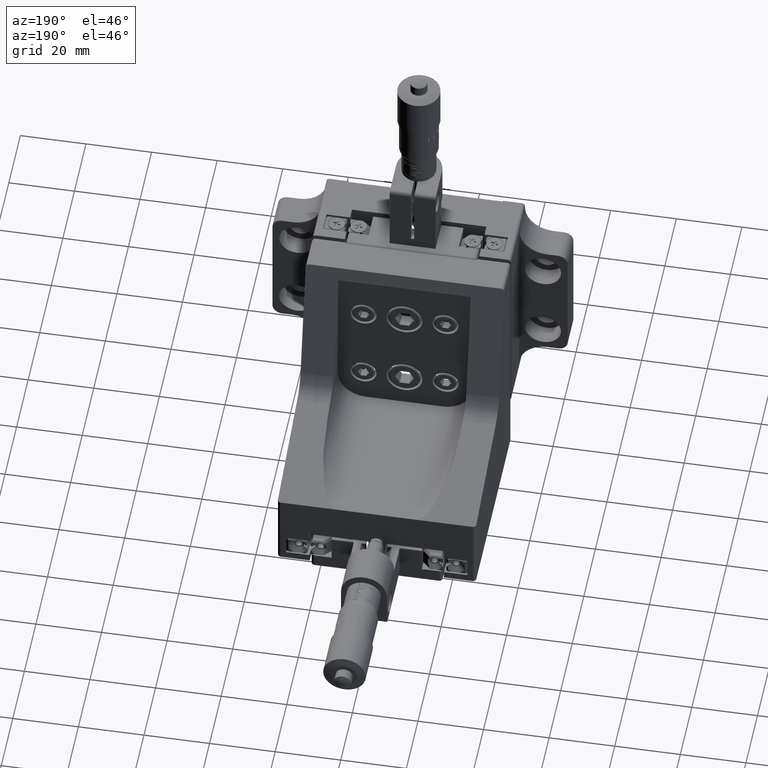
[diagram: clean part render]
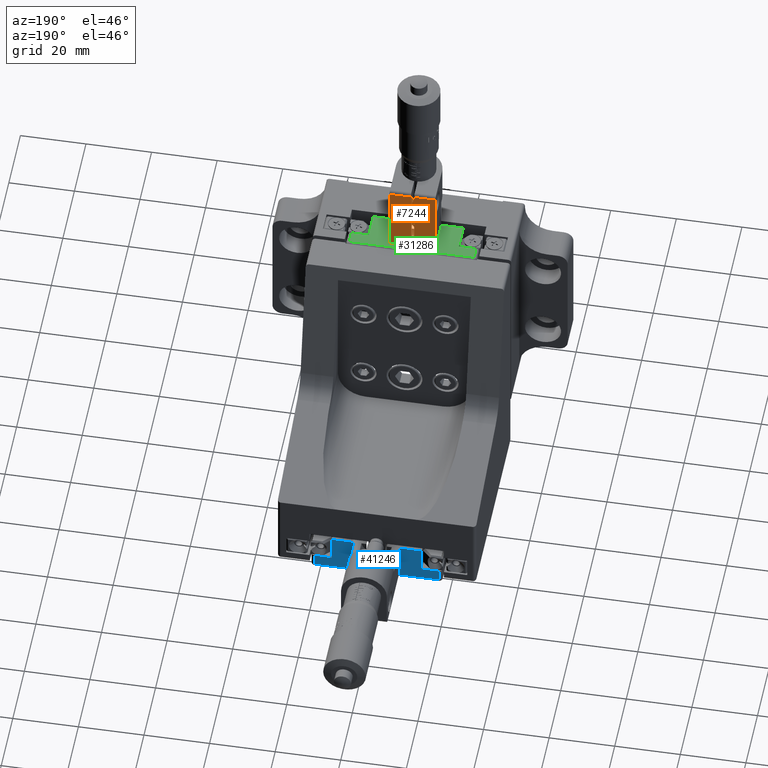
[diagram: same view with three faces highlighted in distinct colors, each labeled with its STEP entity id]
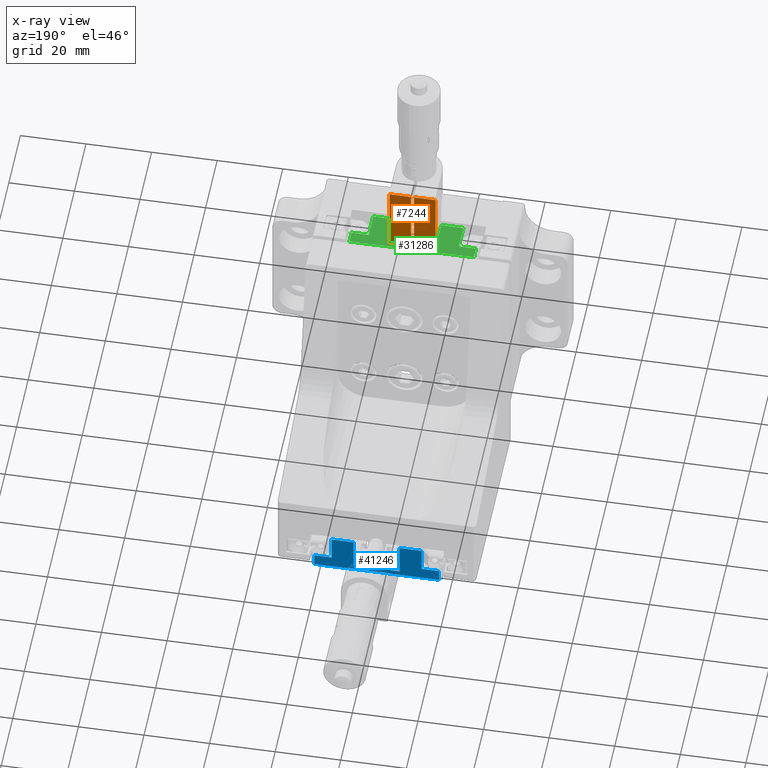
[diagram: x-ray of the same camera — body ghosted, the three highlighted faces saturated]
A machine part, auxiliary view with three faces highlighted in distinct colors.
The next image is the same camera in x-ray (body ghosted, the three faces saturated) — at least one of them is partly hidden behind the body in this view.
Their STEP definitions:

[orange] entity #7244 — the highlighted planar face has unit normal (0, -1, 0).
#9 = VECTOR ( 'NONE', #33601, 1000.000000000000000 ) ;
#1261 = CARTESIAN_POINT ( 'NONE',  ( 1.790640787755551244, 2.884793362488275559, 37.64946462426468798 ) ) ;
#2170 = VECTOR ( 'NONE', #41899, 1000.000000000000000 ) ;
#3417 = ORIENTED_EDGE ( 'NONE', *, *, #36278, .F. ) ;
#3639 = ORIENTED_EDGE ( 'NONE', *, *, #8110, .T. ) ;
#4121 = VERTEX_POINT ( 'NONE', #12371 ) ;
#4552 = VECTOR ( 'NONE', #6290, 1000.000000000000000 ) ;
#5416 = AXIS2_PLACEMENT_3D ( 'NONE', #29250, #7527, #32994 ) ;
#6083 = ORIENTED_EDGE ( 'NONE', *, *, #23496, .F. ) ;
#6290 = DIRECTION ( 'NONE',  ( 1.110223024625159745E-16, -4.929908979680965381E-16, -1.000000000000000000 ) ) ;
#6895 = CARTESIAN_POINT ( 'NONE',  ( 2.790640787755550800, 2.884793362488276447, 37.64946462426468798 ) ) ;
#7244 = ADVANCED_FACE ( 'NONE', ( #11716 ), #18249, .F. ) ;
#7527 = DIRECTION ( 'NONE',  ( 7.530787885402815483E-16, -1.000000000000000000, 4.929908979680966367E-16 ) ) ;
#7983 = EDGE_CURVE ( 'NONE', #33612, #36936, #29813, .T. ) ;
#8110 = EDGE_CURVE ( 'NONE', #4121, #25209, #13220, .T. ) ;
#10421 = EDGE_CURVE ( 'NONE', #35873, #33612, #17407, .T. ) ;
#11716 = FACE_OUTER_BOUND ( 'NONE', #12981, .T. ) ;
#12371 = CARTESIAN_POINT ( 'NONE',  ( 2.790640787755551244, 2.884793362488277335, 37.64946462426468798 ) ) ;
#12713 = CARTESIAN_POINT ( 'NONE',  ( 2.790640787755550800, 2.884793362488276447, 37.64946462426468798 ) ) ;
#12981 = EDGE_LOOP ( 'NONE', ( #3639, #29410, #45769, #37485, #40057, #43678, #6083, #3417 ) ) ;
#13220 = LINE ( 'NONE', #6895, #14345 ) ;
#14345 = VECTOR ( 'NONE', #27928, 1000.000000000000000 ) ;
#14503 = CARTESIAN_POINT ( 'NONE',  ( 2.790640787755548580, 2.884793362488285773, 55.64946462426468088 ) ) ;
#16476 = DIRECTION ( 'NONE',  ( 1.000000000000000000, 7.530787885402817455E-16, 1.110223024625156047E-16 ) ) ;
#17207 = CARTESIAN_POINT ( 'NONE',  ( 9.290640787755553021, 2.884793362488280888, 34.64946462426468798 ) ) ;
#17407 = LINE ( 'NONE', #17636, #18296 ) ;
#17636 = CARTESIAN_POINT ( 'NONE',  ( 9.290640787755551244, 2.884793362488291546, 56.64946462426469509 ) ) ;
#18249 = PLANE ( 'NONE',  #5416 ) ;
#18296 = VECTOR ( 'NONE', #35430, 1000.000000000000000 ) ;
#18359 = VECTOR ( 'NONE', #16476, 1000.000000000000000 ) ;
#19468 = DIRECTION ( 'NONE',  ( -1.000000000000000000, -7.530787885402817455E-16, -1.110223024625156047E-16 ) ) ;
#19746 = CARTESIAN_POINT ( 'NONE',  ( 9.290640787755553021, 2.884793362488280888, 34.64946462426468798 ) ) ;
#19949 = CARTESIAN_POINT ( 'NONE',  ( -4.709359212244449644, 2.884793362488280888, 55.64946462426468088 ) ) ;
#21926 = VERTEX_POINT ( 'NONE', #1261 ) ;
#22041 = VERTEX_POINT ( 'NONE', #19949 ) ;
#23410 = CARTESIAN_POINT ( 'NONE',  ( 1.790640787755551244, 2.884793362488275559, 37.64946462426468798 ) ) ;
#23496 = EDGE_CURVE ( 'NONE', #21926, #41513, #23645, .T. ) ;
#23645 = LINE ( 'NONE', #23410, #2170 ) ;
#25209 = VERTEX_POINT ( 'NONE', #14503 ) ;
#27928 = DIRECTION ( 'NONE',  ( -1.110223024625159745E-16, 4.929908979680965381E-16, 1.000000000000000000 ) ) ;
#29250 = CARTESIAN_POINT ( 'NONE',  ( 9.290640787755551244, 2.884793362488291546, 56.64946462426469509 ) ) ;
#29410 = ORIENTED_EDGE ( 'NONE', *, *, #40582, .T. ) ;
#29813 = LINE ( 'NONE', #19746, #40444 ) ;
#29873 = CARTESIAN_POINT ( 'NONE',  ( 1.790640787755549246, 2.884793362488284885, 55.64946462426468088 ) ) ;
#30124 = EDGE_CURVE ( 'NONE', #22041, #41513, #43889, .T. ) ;
#30256 = LINE ( 'NONE', #37538, #18359 ) ;
#30997 = EDGE_CURVE ( 'NONE', #22041, #36936, #31074, .T. ) ;
#31074 = LINE ( 'NONE', #34825, #4552 ) ;
#31516 = CARTESIAN_POINT ( 'NONE',  ( 9.290640787755551244, 2.884793362488291102, 55.64946462426468798 ) ) ;
#32994 = DIRECTION ( 'NONE',  ( -1.110223024625159745E-16, 4.929908979680965381E-16, 1.000000000000000000 ) ) ;
#33126 = CARTESIAN_POINT ( 'NONE',  ( -4.709359212244447868, 2.884793362488270230, 34.64946462426468798 ) ) ;
#33291 = LINE ( 'NONE', #12713, #37652 ) ;
#33601 = DIRECTION ( 'NONE',  ( 1.000000000000000000, 7.530787885402817455E-16, 1.110223024625156047E-16 ) ) ;
#33612 = VERTEX_POINT ( 'NONE', #17207 ) ;
#34034 = DIRECTION ( 'NONE',  ( -1.000000000000000000, -7.530787885402817455E-16, -1.110223024625156047E-16 ) ) ;
#34825 = CARTESIAN_POINT ( 'NONE',  ( -4.709359212244449644, 2.884793362488281332, 56.64946462426468798 ) ) ;
#35430 = DIRECTION ( 'NONE',  ( 1.110223024625159745E-16, -4.929908979680965381E-16, -1.000000000000000000 ) ) ;
#35873 = VERTEX_POINT ( 'NONE', #31516 ) ;
#36278 = EDGE_CURVE ( 'NONE', #4121, #21926, #33291, .T. ) ;
#36936 = VERTEX_POINT ( 'NONE', #33126 ) ;
#37485 = ORIENTED_EDGE ( 'NONE', *, *, #7983, .T. ) ;
#37538 = CARTESIAN_POINT ( 'NONE',  ( 9.290640787755551244, 2.884793362488291102, 55.64946462426468798 ) ) ;
#37652 = VECTOR ( 'NONE', #19468, 1000.000000000000000 ) ;
#40057 = ORIENTED_EDGE ( 'NONE', *, *, #30997, .F. ) ;
#40444 = VECTOR ( 'NONE', #34034, 1000.000000000000000 ) ;
#40582 = EDGE_CURVE ( 'NONE', #25209, #35873, #30256, .T. ) ;
#40845 = CARTESIAN_POINT ( 'NONE',  ( 1.790640787755549246, 2.884793362488285773, 55.64946462426468088 ) ) ;
#41513 = VERTEX_POINT ( 'NONE', #29873 ) ;
#41899 = DIRECTION ( 'NONE',  ( -1.110223024625159745E-16, 4.929908979680965381E-16, 1.000000000000000000 ) ) ;
#43678 = ORIENTED_EDGE ( 'NONE', *, *, #30124, .T. ) ;
#43889 = LINE ( 'NONE', #40845, #9 ) ;
#45769 = ORIENTED_EDGE ( 'NONE', *, *, #10421, .T. ) ;

[blue] entity #41246 — the highlighted planar face has unit normal (-0, 1, 0).
#508 = EDGE_CURVE ( 'NONE', #28040, #42423, #38525, .T. ) ;
#544 = LINE ( 'NONE', #7815, #45504 ) ;
#662 = EDGE_CURVE ( 'NONE', #26071, #11288, #19968, .T. ) ;
#2496 = EDGE_LOOP ( 'NONE', ( #16521, #26400, #6136, #5016, #27287, #2645, #17563, #36435, #36657, #35161, #3673, #16316 ) ) ;
#2645 = ORIENTED_EDGE ( 'NONE', *, *, #22128, .T. ) ;
#2690 = CARTESIAN_POINT ( 'NONE',  ( -16.70935921218020681, 64.88479336248714446, -43.05053537570060485 ) ) ;
#3673 = ORIENTED_EDGE ( 'NONE', *, *, #10578, .T. ) ;
#4652 = VECTOR ( 'NONE', #40697, 1000.000000000000000 ) ;
#5016 = ORIENTED_EDGE ( 'NONE', *, *, #508, .T. ) ;
#5385 = PLANE ( 'NONE',  #11705 ) ;
#6136 = ORIENTED_EDGE ( 'NONE', *, *, #25262, .T. ) ;
#6633 = LINE ( 'NONE', #35166, #41647 ) ;
#7388 = EDGE_CURVE ( 'NONE', #11288, #20204, #19631, .T. ) ;
#7815 = CARTESIAN_POINT ( 'NONE',  ( -11.45935921218020326, 64.88479336248714446, -39.35053537570061621 ) ) ;
#8154 = CARTESIAN_POINT ( 'NONE',  ( -16.70935921218022457, 64.88479336248714446, -39.35053537570060911 ) ) ;
#9405 = VERTEX_POINT ( 'NONE', #10395 ) ;
#9559 = CARTESIAN_POINT ( 'NONE',  ( 9.290640787819798518, 64.88479336248714446, -30.05053537570063327 ) ) ;
#10395 = CARTESIAN_POINT ( 'NONE',  ( 9.290640787819796742, 64.88479336248714446, -41.55053537570063327 ) ) ;
#10437 = CARTESIAN_POINT ( 'NONE',  ( 21.29064078781985359, 64.88479336248714446, -43.05053537570064037 ) ) ;
#10578 = EDGE_CURVE ( 'NONE', #14126, #26071, #15056, .T. ) ;
#11233 = CARTESIAN_POINT ( 'NONE',  ( 16.04064078781979319, 64.88479336248714446, -39.35053537570062332 ) ) ;
#11288 = VERTEX_POINT ( 'NONE', #11233 ) ;
#11625 = VECTOR ( 'NONE', #31440, 1000.000000000000000 ) ;
#11705 = AXIS2_PLACEMENT_3D ( 'NONE', #19632, #33918, #44664 ) ;
#12041 = LINE ( 'NONE', #19026, #37170 ) ;
#12174 = CARTESIAN_POINT ( 'NONE',  ( 22.29064078781980740, 64.88479336248714446, -39.35053537570062332 ) ) ;
#12808 = EDGE_CURVE ( 'NONE', #20204, #27978, #20254, .T. ) ;
#13445 = CARTESIAN_POINT ( 'NONE',  ( 16.04064078781979674, 64.88479336248714446, -31.55053537570067590 ) ) ;
#14126 = VERTEX_POINT ( 'NONE', #42205 ) ;
#14267 = EDGE_CURVE ( 'NONE', #42423, #25760, #544, .T. ) ;
#14293 = LINE ( 'NONE', #42350, #36030 ) ;
#14438 = VERTEX_POINT ( 'NONE', #27405 ) ;
#15056 = LINE ( 'NONE', #32604, #29548 ) ;
#15412 = LINE ( 'NONE', #33880, #19420 ) ;
#16316 = ORIENTED_EDGE ( 'NONE', *, *, #662, .T. ) ;
#16521 = ORIENTED_EDGE ( 'NONE', *, *, #7388, .T. ) ;
#17563 = ORIENTED_EDGE ( 'NONE', *, *, #34270, .T. ) ;
#19026 = CARTESIAN_POINT ( 'NONE',  ( 9.290640787819796742, 64.88479336248714446, -41.55053537570063327 ) ) ;
#19417 = EDGE_CURVE ( 'NONE', #14438, #21517, #34755, .T. ) ;
#19420 = VECTOR ( 'NONE', #26613, 1000.000000000000000 ) ;
#19631 = LINE ( 'NONE', #12174, #4652 ) ;
#19632 = CARTESIAN_POINT ( 'NONE',  ( 21.29064078781985359, 64.88479336248714446, -43.05053537570064037 ) ) ;
#19968 = LINE ( 'NONE', #13445, #11625 ) ;
#20204 = VERTEX_POINT ( 'NONE', #29617 ) ;
#20254 = LINE ( 'NONE', #45751, #21526 ) ;
#20263 = CARTESIAN_POINT ( 'NONE',  ( -16.70935921218019971, 64.88479336248714446, -43.05053537570080380 ) ) ;
#21041 = CARTESIAN_POINT ( 'NONE',  ( 16.04064078781979674, 64.88479336248714446, -31.55053537570067590 ) ) ;
#21517 = VERTEX_POINT ( 'NONE', #31317 ) ;
#21526 = VECTOR ( 'NONE', #23528, 1000.000000000000000 ) ;
#21964 = EDGE_CURVE ( 'NONE', #9405, #14438, #12041, .T. ) ;
#22128 = EDGE_CURVE ( 'NONE', #25760, #33094, #6633, .T. ) ;
#23528 = DIRECTION ( 'NONE',  ( 1.200259861470175307E-14, 7.788471400556360391E-17, -1.000000000000000000 ) ) ;
#23804 = DIRECTION ( 'NONE',  ( -1.873501354054950676E-16, 7.788471400556191526E-17, -1.000000000000000000 ) ) ;
#24386 = DIRECTION ( 'NONE',  ( 1.873501354054950676E-16, -7.788471400556191526E-17, 1.000000000000000000 ) ) ;
#24439 = CARTESIAN_POINT ( 'NONE',  ( -4.709359212180202370, 64.88479336248714446, -30.05053537570062971 ) ) ;
#25262 = EDGE_CURVE ( 'NONE', #27978, #28040, #15412, .T. ) ;
#25760 = VERTEX_POINT ( 'NONE', #38903 ) ;
#26071 = VERTEX_POINT ( 'NONE', #21041 ) ;
#26282 = DIRECTION ( 'NONE',  ( -1.000000000000000000, -1.387778780781446415E-16, 1.873501354054950676E-16 ) ) ;
#26400 = ORIENTED_EDGE ( 'NONE', *, *, #12808, .T. ) ;
#26473 = DIRECTION ( 'NONE',  ( 1.000000000000000000, 1.387778780781446662E-16, -4.649058915617834138E-16 ) ) ;
#26613 = DIRECTION ( 'NONE',  ( -1.000000000000000000, -1.387778780781446908E-16, 9.352898572582309791E-16 ) ) ;
#26648 = FACE_OUTER_BOUND ( 'NONE', #2496, .T. ) ;
#27287 = ORIENTED_EDGE ( 'NONE', *, *, #14267, .T. ) ;
#27405 = CARTESIAN_POINT ( 'NONE',  ( -4.709359212180204146, 64.88479336248714446, -41.55053537570063327 ) ) ;
#27978 = VERTEX_POINT ( 'NONE', #10437 ) ;
#28040 = VERTEX_POINT ( 'NONE', #2690 ) ;
#29090 = DIRECTION ( 'NONE',  ( 1.000000000000000000, 1.387778780781448141E-16, -2.269018306577663679E-15 ) ) ;
#29288 = VECTOR ( 'NONE', #23804, 1000.000000000000000 ) ;
#29548 = VECTOR ( 'NONE', #29090, 1000.000000000000000 ) ;
#29617 = CARTESIAN_POINT ( 'NONE',  ( 21.29064078781980385, 64.88479336248714446, -39.35053537570062332 ) ) ;
#29905 = CARTESIAN_POINT ( 'NONE',  ( -11.45935921218020326, 64.88479336248714446, -31.55053537570061550 ) ) ;
#31317 = CARTESIAN_POINT ( 'NONE',  ( -4.709359212180204146, 64.88479336248714446, -31.55053537570062616 ) ) ;
#31440 = DIRECTION ( 'NONE',  ( -6.321510266816027023E-16, 7.788471400556185363E-17, -1.000000000000000000 ) ) ;
#32195 = EDGE_CURVE ( 'NONE', #14126, #9405, #41592, .T. ) ;
#32604 = CARTESIAN_POINT ( 'NONE',  ( 16.04064078781979674, 64.88479336248714446, -31.55053537570067590 ) ) ;
#33094 = VERTEX_POINT ( 'NONE', #29905 ) ;
#33880 = CARTESIAN_POINT ( 'NONE',  ( 21.29064078781985359, 64.88479336248714446, -43.05053537570064037 ) ) ;
#33918 = DIRECTION ( 'NONE',  ( -1.387778780781446169E-16, 1.000000000000000000, 7.788471400556193991E-17 ) ) ;
#34086 = DIRECTION ( 'NONE',  ( -4.501091691558859781E-15, -7.788471400556256853E-17, 1.000000000000000000 ) ) ;
#34270 = EDGE_CURVE ( 'NONE', #33094, #21517, #14293, .T. ) ;
#34755 = LINE ( 'NONE', #24439, #42598 ) ;
#35161 = ORIENTED_EDGE ( 'NONE', *, *, #32195, .F. ) ;
#35166 = CARTESIAN_POINT ( 'NONE',  ( -11.45935921218020326, 64.88479336248714446, -31.55053537570061550 ) ) ;
#36030 = VECTOR ( 'NONE', #42815, 1000.000000000000000 ) ;
#36435 = ORIENTED_EDGE ( 'NONE', *, *, #19417, .F. ) ;
#36657 = ORIENTED_EDGE ( 'NONE', *, *, #21964, .F. ) ;
#37170 = VECTOR ( 'NONE', #26282, 1000.000000000000000 ) ;
#38525 = LINE ( 'NONE', #20263, #43729 ) ;
#38903 = CARTESIAN_POINT ( 'NONE',  ( -11.45935921218020326, 64.88479336248714446, -39.35053537570061621 ) ) ;
#39877 = DIRECTION ( 'NONE',  ( 1.873501354054950676E-16, -7.788471400556191526E-17, 1.000000000000000000 ) ) ;
#40697 = DIRECTION ( 'NONE',  ( 1.000000000000000000, 1.387778780781446415E-16, -1.873501354054950676E-16 ) ) ;
#41246 = ADVANCED_FACE ( 'NONE', ( #26648 ), #5385, .T. ) ;
#41592 = LINE ( 'NONE', #9559, #29288 ) ;
#41647 = VECTOR ( 'NONE', #24386, 1000.000000000000000 ) ;
#42205 = CARTESIAN_POINT ( 'NONE',  ( 9.290640787819798518, 64.88479336248714446, -31.55053537570066169 ) ) ;
#42350 = CARTESIAN_POINT ( 'NONE',  ( 16.04064078781979674, 64.88479336248714446, -31.55053537570067590 ) ) ;
#42423 = VERTEX_POINT ( 'NONE', #8154 ) ;
#42598 = VECTOR ( 'NONE', #39877, 1000.000000000000000 ) ;
#42815 = DIRECTION ( 'NONE',  ( 1.000000000000000000, 1.387778780781448141E-16, -2.269018306577663679E-15 ) ) ;
#43729 = VECTOR ( 'NONE', #34086, 1000.000000000000000 ) ;
#44664 = DIRECTION ( 'NONE',  ( -1.000000000000000000, -1.387778780781446415E-16, 1.873501354054950676E-16 ) ) ;
#45504 = VECTOR ( 'NONE', #26473, 1000.000000000000000 ) ;
#45751 = CARTESIAN_POINT ( 'NONE',  ( 21.29064078781985003, 64.88479336248714446, -43.05053537570064037 ) ) ;

[green] entity #31286 — the highlighted planar face has unit normal (-0, 0, 1).
#1411 = VERTEX_POINT ( 'NONE', #23611 ) ;
#1460 = ORIENTED_EDGE ( 'NONE', *, *, #9202, .F. ) ;
#1936 = DIRECTION ( 'NONE',  ( -1.110223024625159745E-16, 4.929908979680965381E-16, 1.000000000000000000 ) ) ;
#2232 = VECTOR ( 'NONE', #19997, 1000.000000000000000 ) ;
#2352 = EDGE_CURVE ( 'NONE', #10510, #12009, #44385, .T. ) ;
#2640 = CARTESIAN_POINT ( 'NONE',  ( -16.70935921224445053, 4.384793362488232482, 34.64946462426468798 ) ) ;
#4123 = CARTESIAN_POINT ( 'NONE',  ( -16.70935921224446474, 0.6847933624882420744, 34.64946462426468798 ) ) ;
#4638 = CARTESIAN_POINT ( 'NONE',  ( -11.45935921224443987, -7.115206637511749754, 34.64946462426469509 ) ) ;
#4909 = ORIENTED_EDGE ( 'NONE', *, *, #20956, .T. ) ;
#4993 = PLANE ( 'NONE',  #40411 ) ;
#5418 = CARTESIAN_POINT ( 'NONE',  ( 16.04064078775556013, -7.115206637511671595, 34.64946462426469509 ) ) ;
#5649 = VECTOR ( 'NONE', #40386, 1000.000000000000000 ) ;
#5725 = CARTESIAN_POINT ( 'NONE',  ( 9.290640787755561902, -8.615206637511720444, 34.64946462426469509 ) ) ;
#6449 = CARTESIAN_POINT ( 'NONE',  ( 21.29064078775560631, 4.384793362488290214, 34.64946462426468798 ) ) ;
#6482 = ORIENTED_EDGE ( 'NONE', *, *, #9668, .T. ) ;
#7281 = EDGE_CURVE ( 'NONE', #14523, #35564, #26192, .T. ) ;
#7912 = ORIENTED_EDGE ( 'NONE', *, *, #19187, .T. ) ;
#7983 = EDGE_CURVE ( 'NONE', #33612, #36936, #29813, .T. ) ;
#8117 = LINE ( 'NONE', #29387, #5649 ) ;
#8350 = VECTOR ( 'NONE', #40969, 1000.000000000000000 ) ;
#8510 = VERTEX_POINT ( 'NONE', #12868 ) ;
#9138 = VERTEX_POINT ( 'NONE', #4123 ) ;
#9202 = EDGE_CURVE ( 'NONE', #21122, #33612, #12286, .T. ) ;
#9244 = DIRECTION ( 'NONE',  ( -7.530787885402815483E-16, 1.000000000000000000, -4.929908979680966367E-16 ) ) ;
#9270 = LINE ( 'NONE', #12546, #2232 ) ;
#9416 = CARTESIAN_POINT ( 'NONE',  ( 16.04064078775554947, 0.6847933624882716064, 34.64946462426469509 ) ) ;
#9668 = EDGE_CURVE ( 'NONE', #29431, #9138, #30681, .T. ) ;
#9896 = EDGE_CURVE ( 'NONE', #8510, #29431, #18037, .T. ) ;
#10510 = VERTEX_POINT ( 'NONE', #43365 ) ;
#11499 = DIRECTION ( 'NONE',  ( -1.000000000000000000, -1.501018510393017756E-15, -1.110223024625152350E-16 ) ) ;
#12009 = VERTEX_POINT ( 'NONE', #33034 ) ;
#12025 = CARTESIAN_POINT ( 'NONE',  ( -4.709359212244442539, -7.115206637511731103, 34.64946462426469509 ) ) ;
#12286 = LINE ( 'NONE', #5725, #35212 ) ;
#12372 = EDGE_CURVE ( 'NONE', #1411, #14523, #26182, .T. ) ;
#12546 = CARTESIAN_POINT ( 'NONE',  ( -11.45935921224444520, 0.6847933624882472925, 34.64946462426468798 ) ) ;
#12625 = CARTESIAN_POINT ( 'NONE',  ( 16.04064078775556013, -7.115206637511671595, 34.64946462426469509 ) ) ;
#12679 = LINE ( 'NONE', #5418, #8350 ) ;
#12868 = CARTESIAN_POINT ( 'NONE',  ( 21.29064078775560986, 4.384793362488290214, 34.64946462426468798 ) ) ;
#12926 = DIRECTION ( 'NONE',  ( -3.935363038424073202E-15, -1.000000000000000000, 4.929908979680961437E-16 ) ) ;
#14523 = VERTEX_POINT ( 'NONE', #9416 ) ;
#14622 = ORIENTED_EDGE ( 'NONE', *, *, #2352, .T. ) ;
#14763 = DIRECTION ( 'NONE',  ( 1.000000000000000000, 7.530787885402817455E-16, 1.110223024625156047E-16 ) ) ;
#16523 = ORIENTED_EDGE ( 'NONE', *, *, #9896, .T. ) ;
#16683 = ORIENTED_EDGE ( 'NONE', *, *, #18501, .F. ) ;
#16872 = CARTESIAN_POINT ( 'NONE',  ( 9.290640787755560126, -7.115206637511692911, 34.64946462426469509 ) ) ;
#17207 = CARTESIAN_POINT ( 'NONE',  ( 9.290640787755553021, 2.884793362488280888, 34.64946462426468798 ) ) ;
#18037 = LINE ( 'NONE', #40246, #36245 ) ;
#18501 = EDGE_CURVE ( 'NONE', #36936, #25584, #42564, .T. ) ;
#19128 = VECTOR ( 'NONE', #12926, 1000.000000000000000 ) ;
#19187 = EDGE_CURVE ( 'NONE', #9138, #10510, #9270, .T. ) ;
#19746 = CARTESIAN_POINT ( 'NONE',  ( 9.290640787755553021, 2.884793362488280888, 34.64946462426468798 ) ) ;
#19997 = DIRECTION ( 'NONE',  ( 1.000000000000000000, 1.030634544696570092E-15, 1.110223024625154692E-16 ) ) ;
#20956 = EDGE_CURVE ( 'NONE', #21122, #1411, #12679, .T. ) ;
#21122 = VERTEX_POINT ( 'NONE', #16872 ) ;
#21835 = ORIENTED_EDGE ( 'NONE', *, *, #7281, .T. ) ;
#22550 = VECTOR ( 'NONE', #37611, 1000.000000000000000 ) ;
#23611 = CARTESIAN_POINT ( 'NONE',  ( 16.04064078775556013, -7.115206637511671595, 34.64946462426469509 ) ) ;
#23679 = FACE_OUTER_BOUND ( 'NONE', #42878, .T. ) ;
#25584 = VERTEX_POINT ( 'NONE', #12025 ) ;
#26182 = LINE ( 'NONE', #12625, #35704 ) ;
#26192 = LINE ( 'NONE', #40467, #42017 ) ;
#26946 = ORIENTED_EDGE ( 'NONE', *, *, #37112, .T. ) ;
#28526 = CARTESIAN_POINT ( 'NONE',  ( -4.709359212244438986, -8.615206637511731103, 34.64946462426469509 ) ) ;
#29387 = CARTESIAN_POINT ( 'NONE',  ( 16.04064078775556013, -7.115206637511671595, 34.64946462426469509 ) ) ;
#29422 = VECTOR ( 'NONE', #31926, 1000.000000000000000 ) ;
#29431 = VERTEX_POINT ( 'NONE', #2640 ) ;
#29799 = ORIENTED_EDGE ( 'NONE', *, *, #40039, .T. ) ;
#29813 = LINE ( 'NONE', #19746, #40444 ) ;
#30681 = LINE ( 'NONE', #44955, #19128 ) ;
#31286 = ADVANCED_FACE ( 'NONE', ( #23679 ), #4993, .T. ) ;
#31926 = DIRECTION ( 'NONE',  ( 1.143686996156696649E-14, 1.000000000000000000, -4.929908979680952562E-16 ) ) ;
#32493 = ORIENTED_EDGE ( 'NONE', *, *, #12372, .T. ) ;
#33034 = CARTESIAN_POINT ( 'NONE',  ( -11.45935921224443987, -7.115206637511749754, 34.64946462426469509 ) ) ;
#33126 = CARTESIAN_POINT ( 'NONE',  ( -4.709359212244447868, 2.884793362488270230, 34.64946462426468798 ) ) ;
#33612 = VERTEX_POINT ( 'NONE', #17207 ) ;
#33675 = DIRECTION ( 'NONE',  ( -1.197879679816389183E-15, 1.000000000000000000, -4.929908979680967353E-16 ) ) ;
#33990 = CARTESIAN_POINT ( 'NONE',  ( 21.29064078775560986, 4.384793362488290214, 34.64946462426468798 ) ) ;
#34034 = DIRECTION ( 'NONE',  ( -1.000000000000000000, -7.530787885402817455E-16, -1.110223024625156047E-16 ) ) ;
#35212 = VECTOR ( 'NONE', #9244, 1000.000000000000000 ) ;
#35564 = VERTEX_POINT ( 'NONE', #43254 ) ;
#35704 = VECTOR ( 'NONE', #33675, 1000.000000000000000 ) ;
#36245 = VECTOR ( 'NONE', #11499, 1000.000000000000000 ) ;
#36936 = VERTEX_POINT ( 'NONE', #33126 ) ;
#37112 = EDGE_CURVE ( 'NONE', #35564, #8510, #39184, .T. ) ;
#37611 = DIRECTION ( 'NONE',  ( 7.530787885402815483E-16, -1.000000000000000000, 4.929908979680966367E-16 ) ) ;
#39184 = LINE ( 'NONE', #6449, #29422 ) ;
#40039 = EDGE_CURVE ( 'NONE', #12009, #25584, #8117, .T. ) ;
#40046 = ORIENTED_EDGE ( 'NONE', *, *, #7983, .F. ) ;
#40246 = CARTESIAN_POINT ( 'NONE',  ( 21.29064078775560986, 4.384793362488290214, 34.64946462426468798 ) ) ;
#40386 = DIRECTION ( 'NONE',  ( 1.000000000000000000, 2.834746959712450259E-15, 1.110223024625145817E-16 ) ) ;
#40411 = AXIS2_PLACEMENT_3D ( 'NONE', #33990, #1936, #45207 ) ;
#40444 = VECTOR ( 'NONE', #34034, 1000.000000000000000 ) ;
#40467 = CARTESIAN_POINT ( 'NONE',  ( 22.29064078775556723, 0.6847933624882759363, 34.64946462426469509 ) ) ;
#40969 = DIRECTION ( 'NONE',  ( 1.000000000000000000, 2.834746959712450259E-15, 1.110223024625145817E-16 ) ) ;
#42017 = VECTOR ( 'NONE', #14763, 1000.000000000000000 ) ;
#42564 = LINE ( 'NONE', #28526, #43315 ) ;
#42878 = EDGE_LOOP ( 'NONE', ( #21835, #26946, #16523, #6482, #7912, #14622, #29799, #16683, #40046, #1460, #4909, #32493 ) ) ;
#43254 = CARTESIAN_POINT ( 'NONE',  ( 21.29064078775556368, 0.6847933624882750481, 34.64946462426469509 ) ) ;
#43315 = VECTOR ( 'NONE', #46292, 1000.000000000000000 ) ;
#43365 = CARTESIAN_POINT ( 'NONE',  ( -11.45935921224444520, 0.6847933624882472925, 34.64946462426468798 ) ) ;
#44385 = LINE ( 'NONE', #4638, #22550 ) ;
#44955 = CARTESIAN_POINT ( 'NONE',  ( -16.70935921224444343, 4.384793362488440316, 34.64946462426468798 ) ) ;
#45207 = DIRECTION ( 'NONE',  ( -1.000000000000000000, -7.530787885402817455E-16, -1.110223024625156047E-16 ) ) ;
#46292 = DIRECTION ( 'NONE',  ( 7.530787885402815483E-16, -1.000000000000000000, 4.929908979680966367E-16 ) ) ;